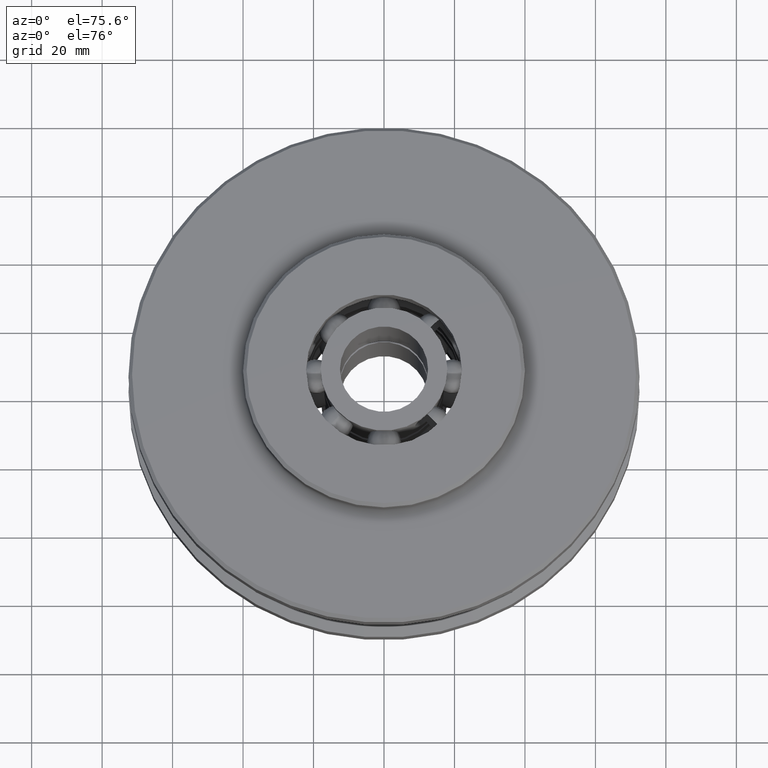
[diagram: clean part render]
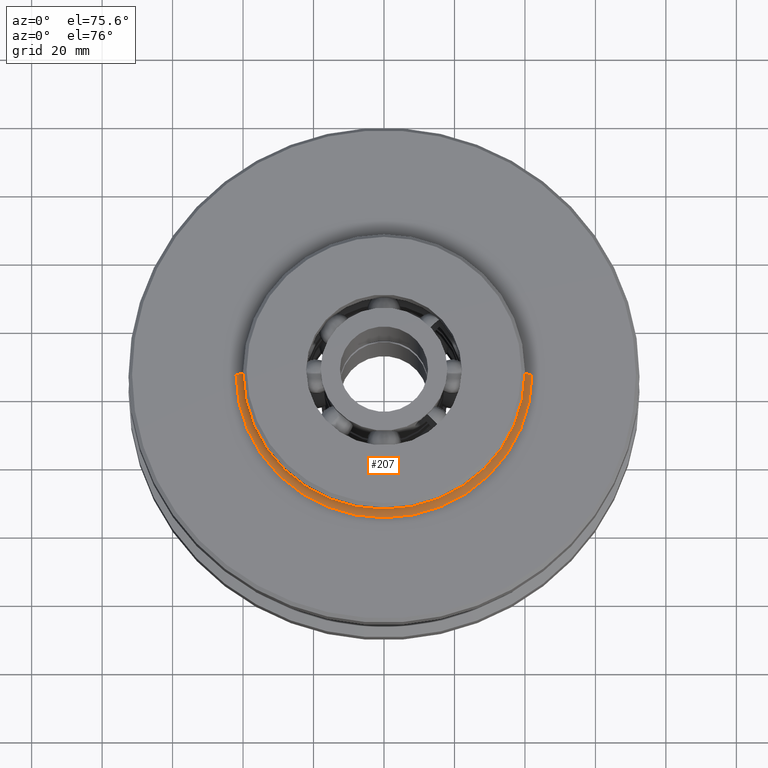
[diagram: same view with one face highlighted and labeled with its STEP entity id]
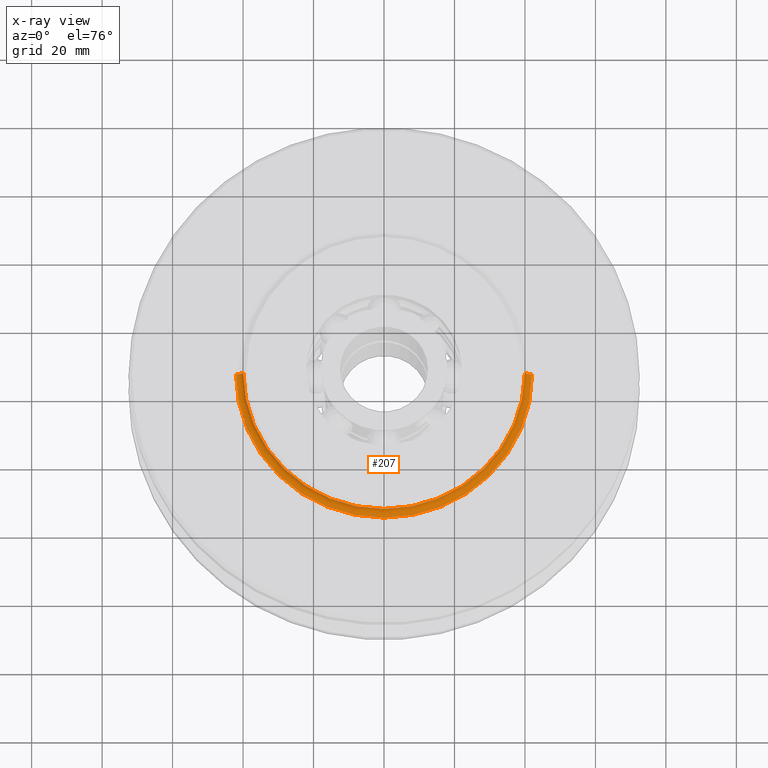
[diagram: x-ray of the same camera — body ghosted, the highlighted face saturated]
A machine part, auxiliary view. The second image highlights one B-rep face of the part: STEP entity #207.
The next image is the same camera in x-ray: the body ghosted, the highlighted face saturated — about 0% of this face is hidden behind the body in this view.
In plain terms, the highlighted toroidal blend (fillet) surface has major radius 42 mm and minor (blend) radius 2 mm.
Its self-contained STEP definition (entity closure, byte-faithful):
#207=ADVANCED_FACE('',(#505),#506,.F.);
#505=FACE_OUTER_BOUND('',#915,.T.);
#506=TOROIDAL_SURFACE('',#916,42.0,1.99999999999998);
#915=EDGE_LOOP('',(#1459,#1460,#1461,#1462));
#916=AXIS2_PLACEMENT_3D('',#1463,#1464,#1465);
#1459=ORIENTED_EDGE('',*,*,#2696,.F.);
#1460=ORIENTED_EDGE('',*,*,#2697,.T.);
#1461=ORIENTED_EDGE('',*,*,#2698,.F.);
#1462=ORIENTED_EDGE('',*,*,#2699,.F.);
#1463=CARTESIAN_POINT('',(0.0,0.0,13.0));
#1464=DIRECTION('',(0.0,0.0,1.0));
#1465=DIRECTION('',(1.0,0.0,0.0));
#2696=EDGE_CURVE('',#3327,#3323,#3328,.T.);
#2697=EDGE_CURVE('',#3327,#3329,#3330,.T.);
#2698=EDGE_CURVE('',#3321,#3329,#3331,.T.);
#2699=EDGE_CURVE('',#3323,#3321,#3332,.T.);
#3321=VERTEX_POINT('',#4856);
#3323=VERTEX_POINT('',#4859);
#3327=VERTEX_POINT('',#4864);
#3328=CIRCLE('',#4865,1.99999999999998);
#3329=VERTEX_POINT('',#4866);
#3330=CIRCLE('',#4867,42.0);
#3331=CIRCLE('',#4868,1.99999999999998);
#3332=CIRCLE('',#4869,40.0);
#4856=CARTESIAN_POINT('',(40.0,0.0,13.0));
#4859=CARTESIAN_POINT('',(-40.0,4.89858719658941E-015,13.0));
#4864=CARTESIAN_POINT('',(-42.0,5.14351655641888E-015,11.0));
#4865=AXIS2_PLACEMENT_3D('',#8022,#8023,#8024);
#4866=CARTESIAN_POINT('',(42.0,0.0,11.0));
#4867=AXIS2_PLACEMENT_3D('',#8025,#8026,#8027);
#4868=AXIS2_PLACEMENT_3D('',#8028,#8029,#8030);
#4869=AXIS2_PLACEMENT_3D('',#8031,#8032,#8033);
#8022=CARTESIAN_POINT('',(-42.0,5.14351655641888E-015,13.0));
#8023=DIRECTION('',(-1.22464679914735E-016,-1.0,0.0));
#8024=DIRECTION('',(-1.0,1.22464679914735E-016,-0.0));
#8025=CARTESIAN_POINT('',(0.0,0.0,11.0));
#8026=DIRECTION('',(0.0,0.0,1.0));
#8027=DIRECTION('',(1.0,0.0,0.0));
#8028=CARTESIAN_POINT('',(42.0,-5.14351655641888E-015,13.0));
#8029=DIRECTION('',(-1.22464679914735E-016,-1.0,0.0));
#8030=DIRECTION('',(1.0,-1.22464679914735E-016,0.0));
#8031=CARTESIAN_POINT('',(0.0,0.0,13.0));
#8032=DIRECTION('',(0.0,0.0,1.0));
#8033=DIRECTION('',(1.0,0.0,0.0));